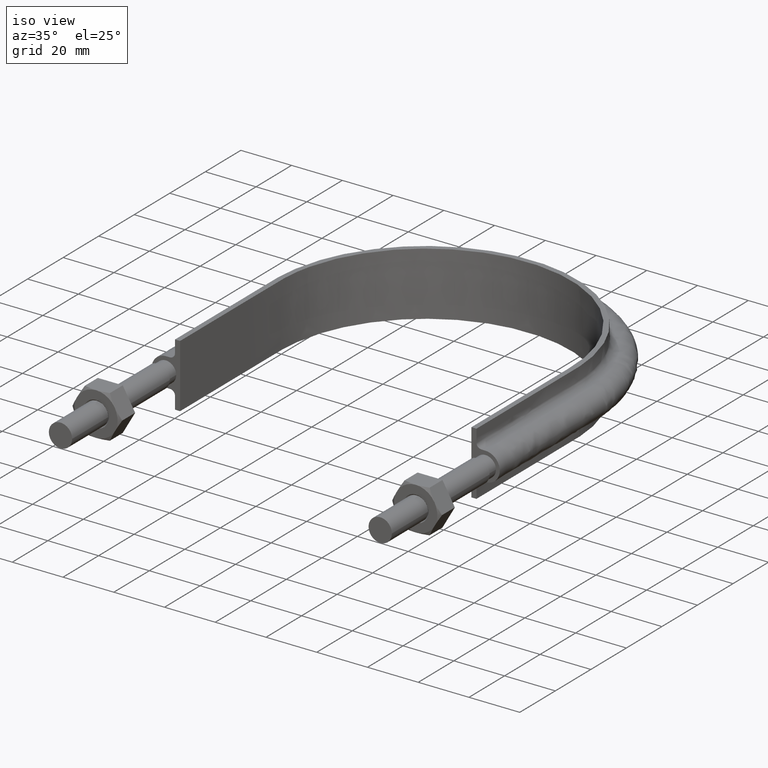
[diagram: clean part render]
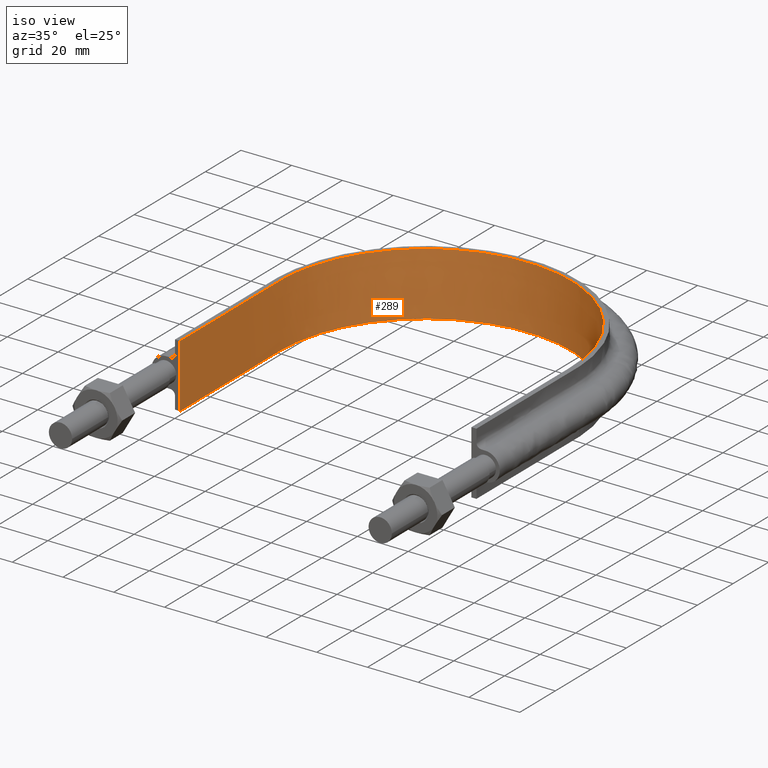
[diagram: same view with one face highlighted and labeled with its STEP entity id]
A machine part, iso view. The second image highlights one B-rep face of the part: STEP entity #289.
In plain terms, the highlighted face is a SurfaceOfExtrusion surface.
Its self-contained STEP definition (entity closure, byte-faithful):
#289 = ADVANCED_FACE( '', ( #452 ), #453, .T. );
#452 = FACE_OUTER_BOUND( '', #778, .T. );
#453 = SURFACE_OF_LINEAR_EXTRUSION( '', #779, #780 );
#778 = EDGE_LOOP( '', ( #1771, #1772, #1773, #1774 ) );
#779 = B_SPLINE_CURVE_WITH_KNOTS( '', 3, ( #1775, #1776, #1777, #1778, #1779, #1780, #1781, #1782, #1783, #1784, #1785, #1786, #1787, #1788, #1789, #1790 ), .UNSPECIFIED., .F., .F., ( 4, 3, 1, 1, 1, 1, 1, 1, 3, 4 ), ( -8.93693843594010, -8.00000000000000, -7.00000000000000, -6.00000000000000, -5.00000000000000, -4.00000000000000, -3.00000000000000, -2.00000000000000, -1.00000000000000, -0.0630615640599001 ), .UNSPECIFIED. );
#780 = VECTOR( '', #1791, 1000.00000000000 );
#1771 = ORIENTED_EDGE( '', *, *, #1955, .T. );
#1772 = ORIENTED_EDGE( '', *, *, #1959, .T. );
#1773 = ORIENTED_EDGE( '', *, *, #1960, .F. );
#1774 = ORIENTED_EDGE( '', *, *, #1961, .T. );
#1775 = CARTESIAN_POINT( '', ( 57.4000000000000, 59.3000000000000, 12.5000100000910 ) );
#1776 = CARTESIAN_POINT( '', ( 57.4000000000000, 78.0700000000000, 12.5000100000910 ) );
#1777 = CARTESIAN_POINT( '', ( 57.4000000000000, 96.8399999999999, 12.5000100000910 ) );
#1778 = CARTESIAN_POINT( '', ( 57.4000000000000, 115.610000000000, 12.5000100000910 ) );
#1779 = CARTESIAN_POINT( '', ( 57.4000000000000, 124.180493203978, 12.5000100000910 ) );
#1780 = CARTESIAN_POINT( '', ( 53.4810424094545, 141.371852668646, 12.5000100000910 ) );
#1781 = CARTESIAN_POINT( '', ( 37.0100296725023, 162.017335605858, 12.5000100000910 ) );
#1782 = CARTESIAN_POINT( '', ( 13.2087266606841, 173.481567469912, 12.5000100000910 ) );
#1783 = CARTESIAN_POINT( '', ( -13.2087266606841, 173.481567469912, 12.5000100000910 ) );
#1784 = CARTESIAN_POINT( '', ( -37.0100296725023, 162.017335605858, 12.5000100000910 ) );
#1785 = CARTESIAN_POINT( '', ( -53.4810424094545, 141.371852668646, 12.5000100000910 ) );
#1786 = CARTESIAN_POINT( '', ( -57.4000000000000, 124.180493203978, 12.5000100000910 ) );
#1787 = CARTESIAN_POINT( '', ( -57.4000000000000, 115.610000000000, 12.5000100000910 ) );
#1788 = CARTESIAN_POINT( '', ( -57.4000000000000, 96.8400000000000, 12.5000100000910 ) );
#1789 = CARTESIAN_POINT( '', ( -57.4000000000000, 78.0700000000000, 12.5000100000910 ) );
#1790 = CARTESIAN_POINT( '', ( -57.4000000000000, 59.3000000000000, 12.5000100000910 ) );
#1791 = DIRECTION( '', ( 0.000000000000000, 0.000000000000000, -1.00000000000000 ) );
#1955 = EDGE_CURVE( '', #2193, #2194, #2195, .T. );
#1959 = EDGE_CURVE( '', #2194, #2201, #2202, .F. );
#1960 = EDGE_CURVE( '', #2203, #2201, #2204, .T. );
#1961 = EDGE_CURVE( '', #2203, #2193, #2205, .T. );
#2193 = VERTEX_POINT( '', #2637 );
#2194 = VERTEX_POINT( '', #2638 );
#2195 = LINE( '', #2639, #2640 );
#2201 = VERTEX_POINT( '', #2678 );
#2202 = B_SPLINE_CURVE_WITH_KNOTS( '', 3, ( #2679, #2680, #2681, #2682, #2683, #2684, #2685, #2686, #2687, #2688, #2689, #2690, #2691, #2692, #2693, #2694 ), .UNSPECIFIED., .F., .F., ( 4, 3, 1, 1, 1, 1, 1, 1, 3, 4 ), ( -8.93693843594010, -8.00000000000000, -7.00000000000000, -6.00000000000000, -5.00000000000000, -4.00000000000000, -3.00000000000000, -2.00000000000000, -1.00000000000000, -0.0630615640599001 ), .UNSPECIFIED. );
#2203 = VERTEX_POINT( '', #2695 );
#2204 = LINE( '', #2696, #2697 );
#2205 = B_SPLINE_CURVE_WITH_KNOTS( '', 3, ( #2698, #2699, #2700, #2701, #2702, #2703, #2704, #2705, #2706, #2707, #2708, #2709, #2710, #2711, #2712, #2713, #2714, #2715, #2716, #2717, #2718, #2719, #2720, #2721, #2722, #2723, #2724, #2725, #2726, #2727, #2728, #2729, #2730, #2731, #2732, #2733, #2734, #2735, #2736, #2737, #2738, #2739, #2740, #2741, #2742, #2743, #2744, #2745, #2746, #2747, #2748, #2749, #2750, #2751, #2752, #2753, #2754, #2755, #2756, #2757, #2758, #2759, #2760, #2761, #2762, #2763, #2764, #2765, #2766, #2767, #2768, #2769, #2770, #2771, #2772, #2773, #2774, #2775, #2776, #2777, #2778, #2779, #2780, #2781, #2782, #2783, #2784, #2785 ), .UNSPECIFIED., .F., .F., ( 4, 1, 2, 2, 2, 2, 2, 2, 2, 2, 2, 2, 2, 2, 2, 2, 2, 2, 2, 2, 2, 2, 2, 2, 2, 2, 2, 2, 2, 2, 2, 2, 2, 2, 2, 2, 2, 2, 2, 2, 2, 2, 2, 1, 4 ), ( 6.93889390390723E-018, 0.0368006591004063, 0.0552009886506094, 0.0575010298443848, 0.0598010710381602, 0.0644011534257111, 0.0736013182008128, 0.0782014005883636, 0.0805014417821391, 0.0828014829759145, 0.0920016477510162, 0.0966017301385670, 0.0989017713323425, 0.101201812526118, 0.110401977301220, 0.115002059688771, 0.117302100882546, 0.119602142076322, 0.128802306851423, 0.133402389238974, 0.135702430432750, 0.138002471626525, 0.147202636401627, 0.156402801176728, 0.158702842370504, 0.161002883564279, 0.165602965951830, 0.174803130726932, 0.177103171920707, 0.179403213114483, 0.184003295502034, 0.193203460277135, 0.195503501470911, 0.197803542664686, 0.202403625052237, 0.211603789827339, 0.213903831021114, 0.216203872214890, 0.220803954602441, 0.230004119377542, 0.234604201765093, 0.236904242958868, 0.239204284152644, 0.257604613702847, 0.294405272803254 ), .UNSPECIFIED. );
#2637 = CARTESIAN_POINT( '', ( -57.4000000000000, 59.3000000000000, 12.5000000000000 ) );
#2638 = CARTESIAN_POINT( '', ( -57.4000000000000, 59.3000000000000, -12.5000000000000 ) );
#2639 = CARTESIAN_POINT( '', ( -57.4000000000000, 59.3000000000000, 12.5000100000910 ) );
#2640 = VECTOR( '', #3083, 1000.00000000000 );
#2678 = CARTESIAN_POINT( '', ( 57.4000000000000, 59.3000000000000, -12.5000000000000 ) );
#2679 = CARTESIAN_POINT( '', ( 57.4000000000000, 59.3000000000000, -12.5000000000000 ) );
#2680 = CARTESIAN_POINT( '', ( 57.4000000000000, 78.0700000000000, -12.5000000000000 ) );
#2681 = CARTESIAN_POINT( '', ( 57.4000000000000, 96.8399999999999, -12.5000000000000 ) );
#2682 = CARTESIAN_POINT( '', ( 57.4000000000000, 115.610000000000, -12.5000000000000 ) );
#2683 = CARTESIAN_POINT( '', ( 57.4000000000000, 124.180493203978, -12.5000000000000 ) );
#2684 = CARTESIAN_POINT( '', ( 53.4810424094545, 141.371852668646, -12.5000000000000 ) );
#2685 = CARTESIAN_POINT( '', ( 37.0100296725023, 162.017335605858, -12.5000000000000 ) );
#2686 = CARTESIAN_POINT( '', ( 13.2087266606841, 173.481567469912, -12.5000000000000 ) );
#2687 = CARTESIAN_POINT( '', ( -13.2087266606841, 173.481567469912, -12.5000000000000 ) );
#2688 = CARTESIAN_POINT( '', ( -37.0100296725023, 162.017335605858, -12.5000000000000 ) );
#2689 = CARTESIAN_POINT( '', ( -53.4810424094545, 141.371852668646, -12.5000000000000 ) );
#2690 = CARTESIAN_POINT( '', ( -57.4000000000000, 124.180493203978, -12.5000000000000 ) );
#2691 = CARTESIAN_POINT( '', ( -57.4000000000000, 115.610000000000, -12.5000000000000 ) );
#2692 = CARTESIAN_POINT( '', ( -57.4000000000000, 96.8400000000000, -12.5000000000000 ) );
#2693 = CARTESIAN_POINT( '', ( -57.4000000000000, 78.0700000000000, -12.5000000000000 ) );
#2694 = CARTESIAN_POINT( '', ( -57.4000000000000, 59.3000000000000, -12.5000000000000 ) );
#2695 = CARTESIAN_POINT( '', ( 57.4000000000000, 59.3000000000000, 12.5000000000000 ) );
#2696 = CARTESIAN_POINT( '', ( 57.4000000000000, 59.3000000000000, 12.5000100000910 ) );
#2697 = VECTOR( '', #3086, 1000.00000000000 );
#2698 = CARTESIAN_POINT( '', ( 57.4000000000000, 59.3000000000000, 12.5000000000000 ) );
#2699 = CARTESIAN_POINT( '', ( 57.4000000000000, 71.5668971504807, 12.5000000000000 ) );
#2700 = CARTESIAN_POINT( '', ( 57.4000000000000, 89.9672428762017, 12.5000000000000 ) );
#2701 = CARTESIAN_POINT( '', ( 57.4000000000000, 108.367588601923, 12.5000000000000 ) );
#2702 = CARTESIAN_POINT( '', ( 57.4000000000000, 115.267718249068, 12.5000000000000 ) );
#2703 = CARTESIAN_POINT( '', ( 57.4036066457802, 116.034404103252, 12.5000000000000 ) );
#2704 = CARTESIAN_POINT( '', ( 57.3712056389476, 117.567723284528, 12.5000000000000 ) );
#2705 = CARTESIAN_POINT( '', ( 57.3393359788148, 118.335375304587, 12.5000000000000 ) );
#2706 = CARTESIAN_POINT( '', ( 57.1976234100831, 120.630663469964, 12.5000000000000 ) );
#2707 = CARTESIAN_POINT( '', ( 57.0421967518527, 122.147180453960, 12.5000000000000 ) );
#2708 = CARTESIAN_POINT( '', ( 56.4004013757546, 126.657352705708, 12.5000000000000 ) );
#2709 = CARTESIAN_POINT( '', ( 55.7399883057787, 129.611959318387, 12.5000000000000 ) );
#2710 = CARTESIAN_POINT( '', ( 54.4013047063944, 133.965777471156, 12.5000000000000 ) );
#2711 = CARTESIAN_POINT( '', ( 53.8966972928597, 135.403952132018, 12.5000000000000 ) );
#2712 = CARTESIAN_POINT( '', ( 53.0487681131460, 137.540793277908, 12.5000000000000 ) );
#2713 = CARTESIAN_POINT( '', ( 52.7511260023258, 138.248939019185, 12.5000000000000 ) );
#2714 = CARTESIAN_POINT( '', ( 52.1306487491250, 139.645579267383, 12.5000000000000 ) );
#2715 = CARTESIAN_POINT( '', ( 51.8071932048135, 140.335643312283, 12.5000000000000 ) );
#2716 = CARTESIAN_POINT( '', ( 50.1243560027939, 143.745011154793, 12.5000000000000 ) );
#2717 = CARTESIAN_POINT( '', ( 48.5704537429599, 146.342805722191, 12.5000000000000 ) );
#2718 = CARTESIAN_POINT( '', ( 45.9378759805748, 150.051022440816, 12.5000000000000 ) );
#2719 = CARTESIAN_POINT( '', ( 45.0097482486542, 151.255485755391, 12.5000000000000 ) );
#2720 = CARTESIAN_POINT( '', ( 43.5399840512472, 153.013724230868, 12.5000000000000 ) );
#2721 = CARTESIAN_POINT( '', ( 43.0360401908091, 153.592882580464, 12.5000000000000 ) );
#2722 = CARTESIAN_POINT( '', ( 42.0071679355064, 154.728730541199, 12.5000000000000 ) );
#2723 = CARTESIAN_POINT( '', ( 41.4830799771197, 155.284602734684, 12.5000000000000 ) );
#2724 = CARTESIAN_POINT( '', ( 38.8150256208348, 158.004509636062, 12.5000000000000 ) );
#2725 = CARTESIAN_POINT( '', ( 36.5289375337691, 159.991083678085, 12.5000000000000 ) );
#2726 = CARTESIAN_POINT( '', ( 32.8725465474710, 162.687177301449, 12.5000000000000 ) );
#2727 = CARTESIAN_POINT( '', ( 31.6159998625510, 163.538738914915, 12.5000000000000 ) );
#2728 = CARTESIAN_POINT( '', ( 29.6741600235068, 164.744883379300, 12.5000000000000 ) );
#2729 = CARTESIAN_POINT( '', ( 29.0173621705769, 165.135046972001, 12.5000000000000 ) );
#2730 = CARTESIAN_POINT( '', ( 27.6844813094563, 165.891293691475, 12.5000000000000 ) );
#2731 = CARTESIAN_POINT( '', ( 27.0092860879624, 166.256786401143, 12.5000000000000 ) );
#2732 = CARTESIAN_POINT( '', ( 23.6148955512584, 168.008321558919, 12.5000000000000 ) );
#2733 = CARTESIAN_POINT( '', ( 20.8188839208601, 169.181221130253, 12.5000000000000 ) );
#2734 = CARTESIAN_POINT( '', ( 16.5063575914382, 170.604430974849, 12.5000000000000 ) );
#2735 = CARTESIAN_POINT( '', ( 15.0489724833804, 171.022456876126, 12.5000000000000 ) );
#2736 = CARTESIAN_POINT( '', ( 12.8322199583379, 171.562489310090, 12.5000000000000 ) );
#2737 = CARTESIAN_POINT( '', ( 12.0881682606319, 171.727937467103, 12.5000000000000 ) );
#2738 = CARTESIAN_POINT( '', ( 10.5896803128537, 172.029378956679, 12.5000000000000 ) );
#2739 = CARTESIAN_POINT( '', ( 9.83354107507674, 172.165648447286, 12.5000000000000 ) );
#2740 = CARTESIAN_POINT( '', ( 6.05033946504701, 172.768951449387, 12.5000000000000 ) );
#2741 = CARTESIAN_POINT( '', ( 3.02331961872779, 173.004107282322, 12.5000000000000 ) );
#2742 = CARTESIAN_POINT( '', ( -3.03159229771674, 173.003674706655, 12.5000000000000 ) );
#2743 = CARTESIAN_POINT( '', ( -6.05948435362816, 172.768093969407, 12.5000000000000 ) );
#2744 = CARTESIAN_POINT( '', ( -9.84492369258674, 172.163681704027, 12.5000000000000 ) );
#2745 = CARTESIAN_POINT( '', ( -10.6002721762764, 172.027389123451, 12.5000000000000 ) );
#2746 = CARTESIAN_POINT( '', ( -12.0978185021844, 171.725853405146, 12.5000000000000 ) );
#2747 = CARTESIAN_POINT( '', ( -12.8414452252180, 171.560367013092, 12.5000000000000 ) );
#2748 = CARTESIAN_POINT( '', ( -15.0570550081485, 171.020235378931, 12.5000000000000 ) );
#2749 = CARTESIAN_POINT( '', ( -16.5138535706963, 170.602163316093, 12.5000000000000 ) );
#2750 = CARTESIAN_POINT( '', ( -20.8250913381977, 169.178758755140, 12.5000000000000 ) );
#2751 = CARTESIAN_POINT( '', ( -23.6208691240751, 168.005657850112, 12.5000000000000 ) );
#2752 = CARTESIAN_POINT( '', ( -27.0156329102760, 166.253406103617, 12.5000000000000 ) );
#2753 = CARTESIAN_POINT( '', ( -27.6910147520960, 165.887696886022, 12.5000000000000 ) );
#2754 = CARTESIAN_POINT( '', ( -29.0234575114923, 165.131477440111, 12.5000000000000 ) );
#2755 = CARTESIAN_POINT( '', ( -29.6800585802787, 164.741324040592, 12.5000000000000 ) );
#2756 = CARTESIAN_POINT( '', ( -31.6213689725298, 163.535193660409, 12.5000000000000 ) );
#2757 = CARTESIAN_POINT( '', ( -32.8776437603805, 162.683619457023, 12.5000000000000 ) );
#2758 = CARTESIAN_POINT( '', ( -36.5334220827474, 159.987374398228, 12.5000000000000 ) );
#2759 = CARTESIAN_POINT( '', ( -38.8193751731554, 158.000549631674, 12.5000000000000 ) );
#2760 = CARTESIAN_POINT( '', ( -41.4874843976750, 155.279993585617, 12.5000000000000 ) );
#2761 = CARTESIAN_POINT( '', ( -42.0115944312468, 154.723974530571, 12.5000000000000 ) );
#2762 = CARTESIAN_POINT( '', ( -43.0405299781912, 153.587794110931, 12.5000000000000 ) );
#2763 = CARTESIAN_POINT( '', ( -43.5442393747025, 153.008765306378, 12.5000000000000 ) );
#2764 = CARTESIAN_POINT( '', ( -45.0135877457227, 151.250627800789, 12.5000000000000 ) );
#2765 = CARTESIAN_POINT( '', ( -45.9415210243651, 150.046162448528, 12.5000000000000 ) );
#2766 = CARTESIAN_POINT( '', ( -48.5736917716303, 146.337694282144, 12.5000000000000 ) );
#2767 = CARTESIAN_POINT( '', ( -50.1275589688897, 143.739408642437, 12.5000000000000 ) );
#2768 = CARTESIAN_POINT( '', ( -51.8104283189417, 140.328866111214, 12.5000000000000 ) );
#2769 = CARTESIAN_POINT( '', ( -52.1338941649284, 139.638538815899, 12.5000000000000 ) );
#2770 = CARTESIAN_POINT( '', ( -52.7543954652596, 138.241312252746, 12.5000000000000 ) );
#2771 = CARTESIAN_POINT( '', ( -53.0520667494113, 137.532782600104, 12.5000000000000 ) );
#2772 = CARTESIAN_POINT( '', ( -53.8993605656225, 135.396631283103, 12.5000000000000 ) );
#2773 = CARTESIAN_POINT( '', ( -54.4036525659497, 133.958777453083, 12.5000000000000 ) );
#2774 = CARTESIAN_POINT( '', ( -55.7415838846627, 129.605493588584, 12.5000000000000 ) );
#2775 = CARTESIAN_POINT( '', ( -56.4017548199478, 126.650676383386, 12.5000000000000 ) );
#2776 = CARTESIAN_POINT( '', ( -57.0431251208449, 122.139233624254, 12.5000000000000 ) );
#2777 = CARTESIAN_POINT( '', ( -57.1984001624354, 120.622133130999, 12.5000000000000 ) );
#2778 = CARTESIAN_POINT( '', ( -57.3398068241163, 118.325705356889, 12.5000000000000 ) );
#2779 = CARTESIAN_POINT( '', ( -57.3715266179354, 117.558403382567, 12.5000000000000 ) );
#2780 = CARTESIAN_POINT( '', ( -57.4036727794919, 116.025333757737, 12.5000000000000 ) );
#2781 = CARTESIAN_POINT( '', ( -57.4000000000000, 115.258769855846, 12.5000000000000 ) );
#2782 = CARTESIAN_POINT( '', ( -57.4000000000000, 108.359743435262, 12.5000000000000 ) );
#2783 = CARTESIAN_POINT( '', ( -57.4000000000000, 89.9623396470387, 12.5000000000000 ) );
#2784 = CARTESIAN_POINT( '', ( -57.4000000000000, 71.5649358588155, 12.5000000000000 ) );
#2785 = CARTESIAN_POINT( '', ( -57.4000000000000, 59.3000000000000, 12.5000000000000 ) );
#3083 = DIRECTION( '', ( 0.000000000000000, 0.000000000000000, -1.00000000000000 ) );
#3086 = DIRECTION( '', ( 0.000000000000000, 0.000000000000000, -1.00000000000000 ) );